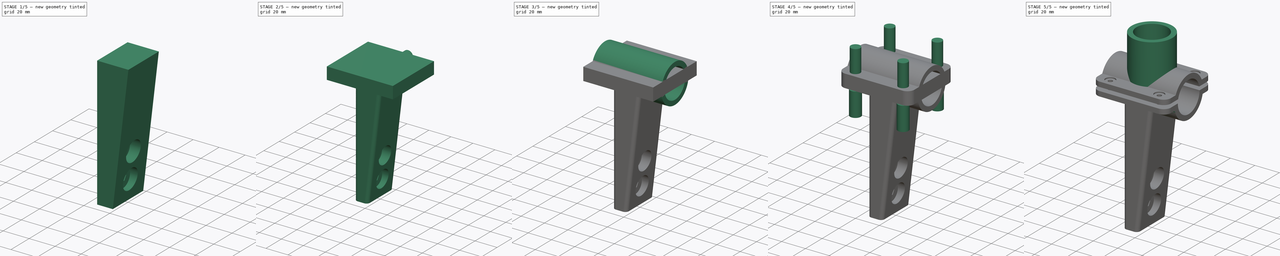
[diagram: build sequence overview — one tinted view per stage of 5, left to right]
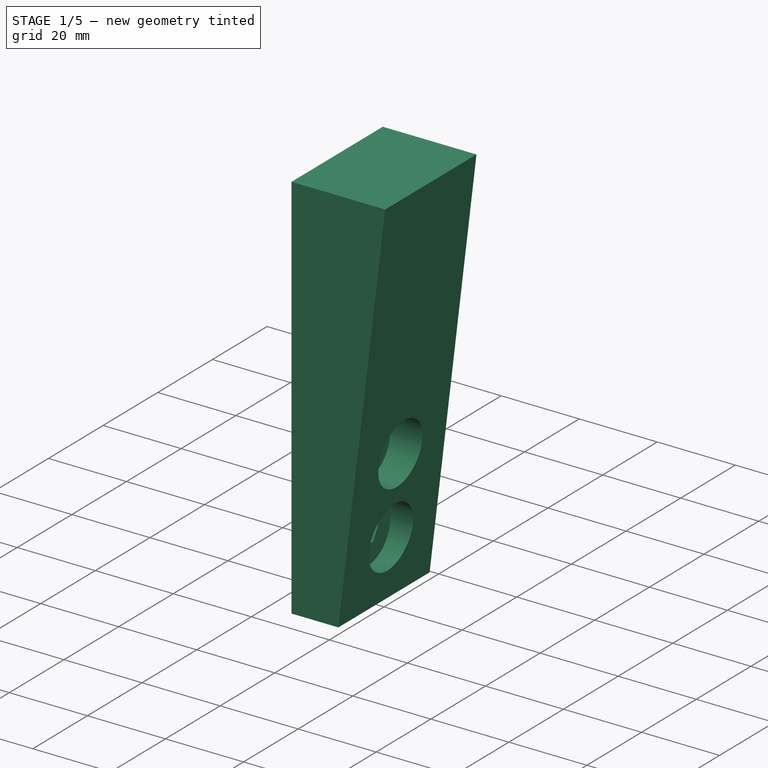
[diagram: stage 1 of 5 — iso view after this stage's code; geometry added in this stage tinted green]
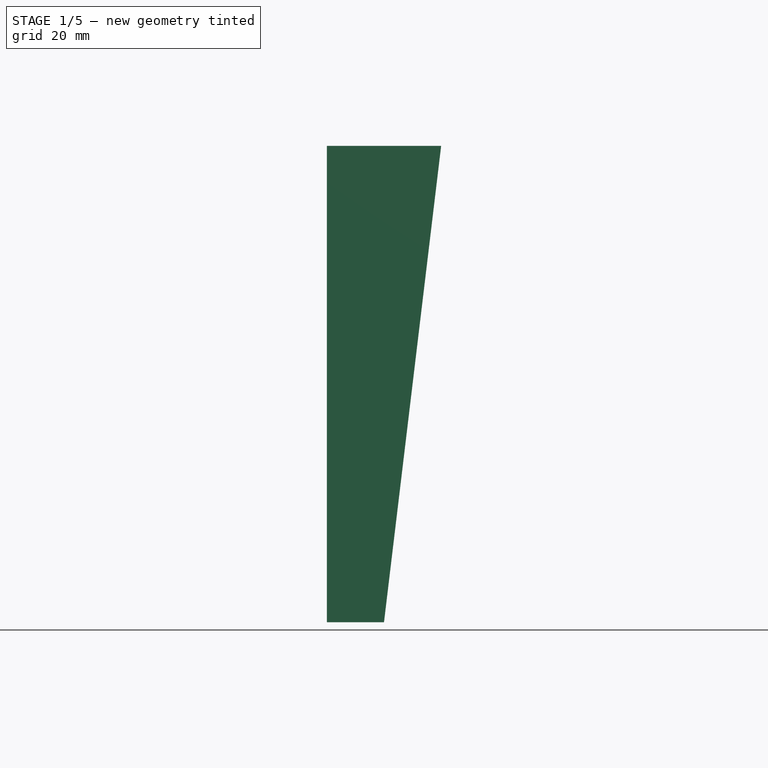
[diagram: stage 1 of 5 — front view after this stage's code; geometry added in this stage tinted green]
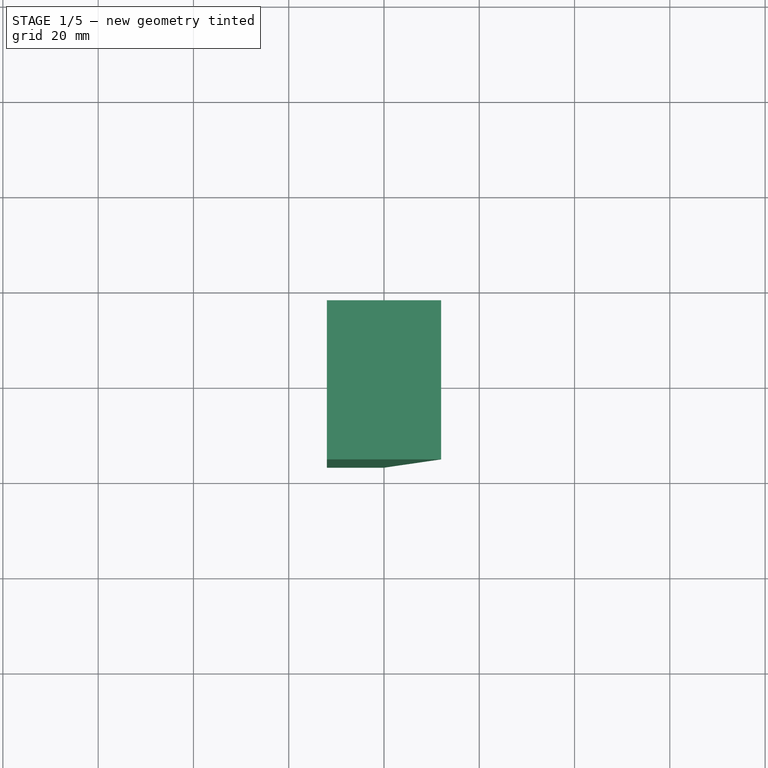
[diagram: stage 1 of 5 — top view after this stage's code; geometry added in this stage tinted green]
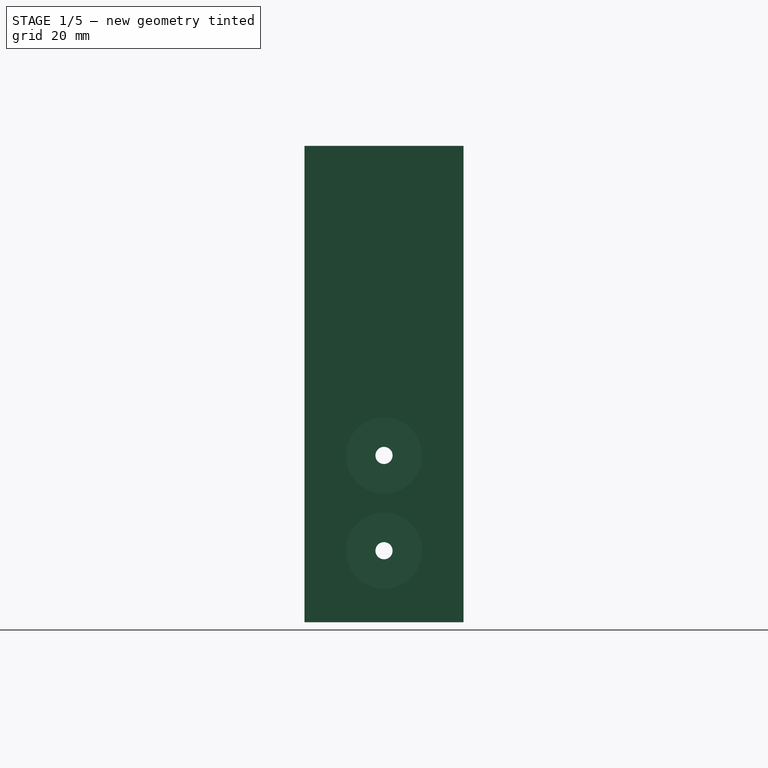
[diagram: stage 1 of 5 — right view after this stage's code; geometry added in this stage tinted green]
FCSTD DOCUMENT  (FreeCAD 0.18.4R)
Label: cross_connector
License: All rights reserved
LicenseURL: http://en.wikipedia.org/wiki/All_rights_reserved
objects: Part::Cylinder×14, Part::MultiFuse×7, PartDesign::FeatureBase×5, PartDesign::Body×5, Part::Box×4, Part::FeaturePython×3, Part::Fillet×3, Part::Cut×3, Spreadsheet::Sheet×2, App::Part×2, Sketcher::SketchObject×2, Part::Extrusion×1, PartDesign::AdditiveLoft×1
note: 49 computed .brp shape members not serialized (recipe doc carries the construction recipe); baked Part::Feature solids carry a one-line shape summary decoded from their .brp

FEATURE [Part::Extrusion] Extrude003  label="m3 nut hole"
  Dir = (0,0,1)
  DirMode = 2
  FaceMakerClass = Part::FaceMakerBullseye
  LengthFwd = 20
  LengthRev = 0
  Solid = true
  Symmetric = false
FEATURE [Sketcher::SketchObject] Sketch
  AttachmentOffset = pos=(0,0,60) rot=(0,0,1;0rad)
  MapMode = 5
  Placement = pos=(0,0,100) rot=(0,0,1;0rad)
  expr: Constraints[8] = 2 * (p001.pipe_internal_r + p001.outer_wall)
  sketch-geometry (4):
    g0: LineSegment StartX=-12 StartY=16.7 StartZ=0 EndX=12 EndY=16.7 EndZ=0
    g1: LineSegment StartX=12 StartY=16.7 StartZ=0 EndX=12 EndY=-16.7 EndZ=0
    g2: LineSegment StartX=12 StartY=-16.7 StartZ=0 EndX=-12 EndY=-16.7 EndZ=0
    g3: LineSegment StartX=-12 StartY=-16.7 StartZ=0 EndX=-12 EndY=16.7 EndZ=0
  constraints (10):
    c: Coincident(g0,g1)
    c: Coincident(g1,g2)
    c: Coincident(g2,g3)
    c: Coincident(g3,g0)
    c: Horizontal(g2)
    c: Vertical(g1)
    c: Symmetric(g0,g0,g-2)
    c: Symmetric(g0,g2,g-1)
    c: DistanceY(g1,g1) = 33.4
    c: DistanceX(g0,g0) = 24
FEATURE [Sketcher::SketchObject] Sketch001
  MapMode = 5
  expr: Constraints[7] = 2 * (p001.pipe_internal_r + p001.outer_wall)
  sketch-geometry (4):
    g0: LineSegment StartX=-12 StartY=16.7 StartZ=0 EndX=0 EndY=16.7 EndZ=0
    g1: LineSegment StartX=0 StartY=16.7 StartZ=0 EndX=0 EndY=-16.7 EndZ=0
    g2: LineSegment StartX=0 StartY=-16.7 StartZ=0 EndX=-12 EndY=-16.7 EndZ=0
    g3: LineSegment StartX=-12 StartY=-16.7 StartZ=0 EndX=-12 EndY=16.7 EndZ=0
  constraints (11):
    c: Coincident(g0,g1)
    c: Coincident(g1,g2)
    c: Coincident(g2,g3)
    c: Coincident(g3,g0)
    c: Horizontal(g0)
    c: Horizontal(g2)
    c: Vertical(g3)
    c: DistanceY(g3,g3) = 33.4
    c: DistanceX(g0,g0) = 12
    c: DistanceX(g2,g-1) = 12
    c: Symmetric(g1,g0,g-1)
FEATURE [PartDesign::AdditiveLoft] AdditiveLoft
  Closed = true
  Placement = pos=(0,0,100) rot=(0,0,1;0rad)
  Profile = -> Sketch
  Refine = true
  Ruled = true
  Sections = -> [Sketch001]
FEATURE [PartDesign::FeatureBase] Clone034
  BaseFeature = -> Extrude003
FEATURE [PartDesign::Body] Body036  label="m3 nut hole clone003"
  BaseFeature = -> Extrude003
  Group = -> [Clone034]
  Origin = -> Origin061
  Placement = pos=(0,32,0) rot=(1,0,0;1.5708rad)
  Tip = -> Clone034
FEATURE [Part::Cylinder] Cylinder096  label="m3 bolt hole003"
  Angle = 360
  AttacherType = Attacher::AttachEngine3D
  Height = 30
  Placement = pos=(0,0,0) rot=(-1,0,0;1.5708rad)
  Radius = 1.8
FEATURE [Part::Cylinder] Cylinder098  label="bolt head cylinder007"
  Angle = 360
  AttacherType = Attacher::AttachEngine3D
  Height = 20
  Placement = pos=(0,16,3.48e-14) rot=(-1,0,0;1.5708rad)
  Radius = 8
FEATURE [Part::MultiFuse] Fusion067  label="m3 bolt nut fusion005"
  Placement = pos=(-20,4e-15,15) rot=(0,0,-1;1.5708rad)
  Shapes = -> [Cylinder096,Body036,Cylinder098]
FEATURE [Part::FeaturePython] Array002  label="m3 bolt nut fusion005 array"  # Draft array (typed FeaturePython)
  Angle = 360
  ArrayType = 0
  Axis = (0,0,1)
  Base = -> Fusion067
  Center = (0,0,0)
  Fuse = false
  IntervalAxis = (0,0,0)
  IntervalX = (1,0,0)
  IntervalY = (0,1,0)
  IntervalZ = (0,0,20)
  NumberPolar = 1
  NumberX = 1
  NumberY = 1
  NumberZ = 2
FEATURE [Part::Cut] Cut002
  Base = -> AdditiveLoft
  Tool = -> Array002
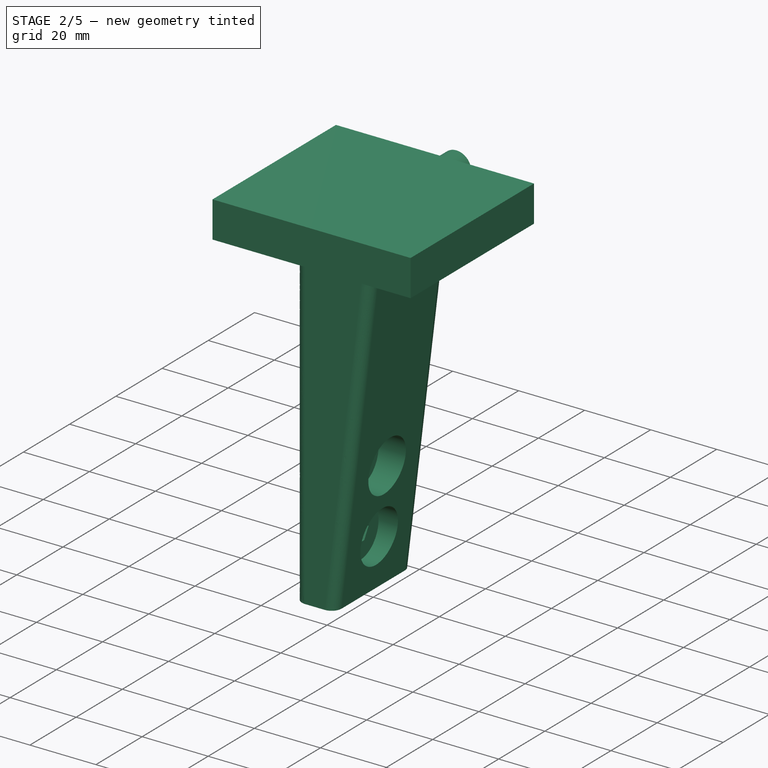
[diagram: stage 2 of 5 — iso view after this stage's code; geometry added in this stage tinted green]
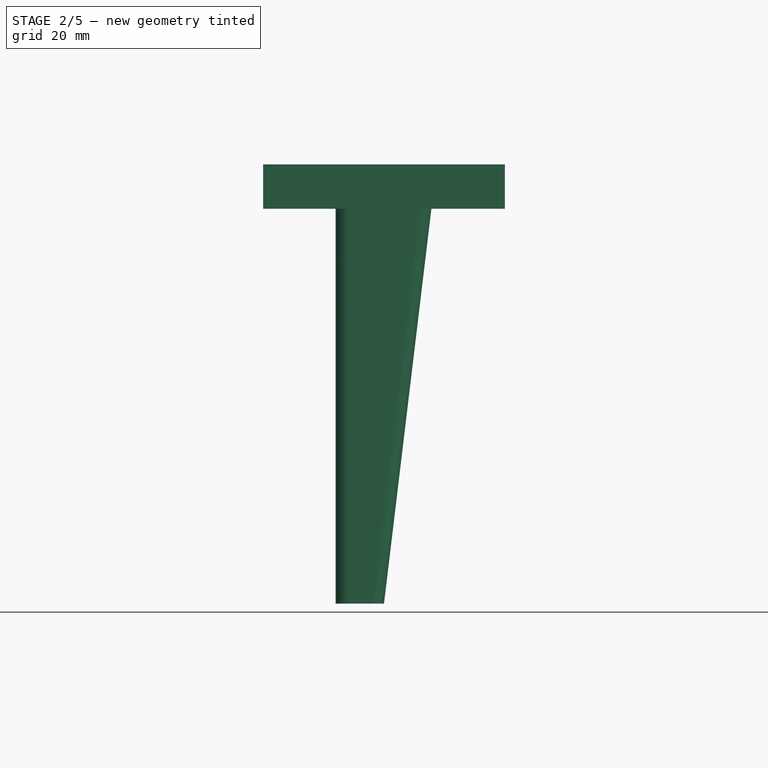
[diagram: stage 2 of 5 — front view after this stage's code; geometry added in this stage tinted green]
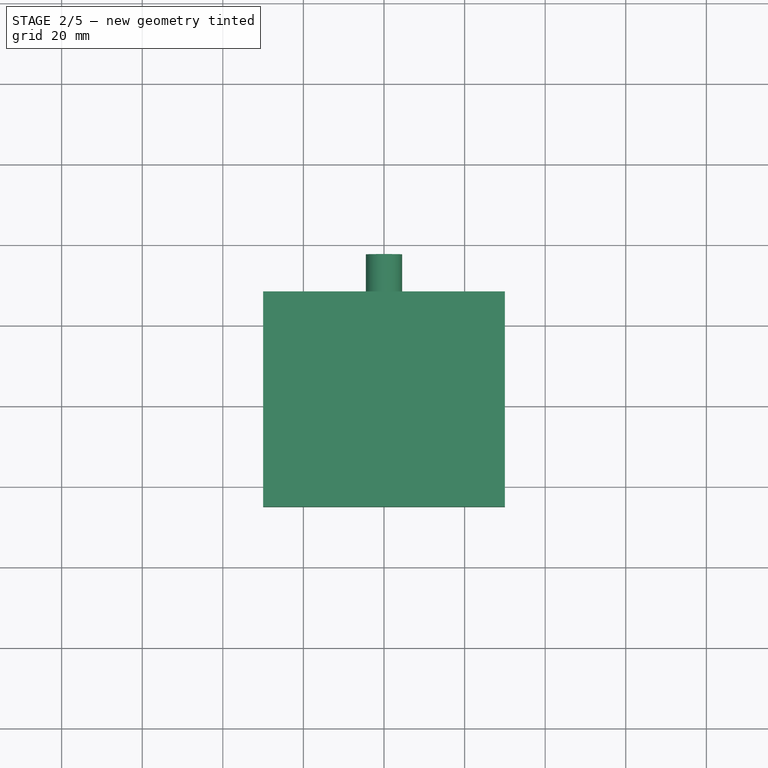
[diagram: stage 2 of 5 — top view after this stage's code; geometry added in this stage tinted green]
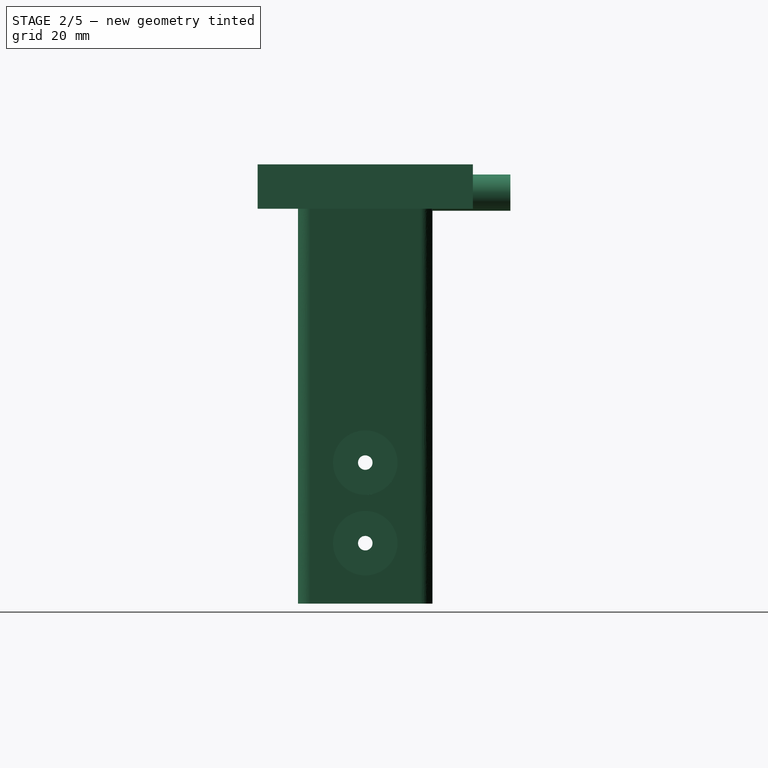
[diagram: stage 2 of 5 — right view after this stage's code; geometry added in this stage tinted green]
FEATURE [PartDesign::FeatureBase] Clone032
  BaseFeature = -> Extrude003
FEATURE [Part::Box] Box003  label="connect plate001"
  AttacherType = Attacher::AttachEngine3D
  Height = 11
  Length = 60
  Placement = pos=(-30,-26.7,-4) rot=(0,0,1;0rad)
  Width = 53.4
  expr: Width = 2 * (p.pipe_internal_r + 14)
  expr: Placement.Base.y = -(p.pipe_internal_r + 14)
  expr: Placement.Base.x = -p.horiz_sz / 2
  expr: Length = p.horiz_sz
  expr: Placement.Base.z = -p.outer_wall
  expr: Height = p.squeeze_flaw + 2 * p.outer_wall
FEATURE [Part::Cylinder] Cylinder093  label="m3 bolt hole002"
  Angle = 360
  AttacherType = Attacher::AttachEngine3D
  Height = 30
  Placement = pos=(0,0,0) rot=(-1,0,0;1.5708rad)
  Radius = 1.8
FEATURE [Part::Cylinder] Cylinder094  label="bolt head cylinder004"
  Angle = 360
  AttacherType = Attacher::AttachEngine3D
  Height = 20
  Placement = pos=(0,-16,3e-15) rot=(-1,0,0;1.5708rad)
  Radius = 4
FEATURE [Part::Cylinder] Cylinder095  label="bolt head cylinder005"
  Angle = 360
  AttacherType = Attacher::AttachEngine3D
  Height = 20
  Placement = pos=(0,16,3.48e-14) rot=(-1,0,0;1.5708rad)
  Radius = 4.5
FEATURE [Part::MultiFuse] Fusion064  label="m3 bolt nut fusion004"
  Shapes = -> [Cylinder093,Body033,Cylinder094,Cylinder095]
FEATURE [PartDesign::FeatureBase] Clone031
  BaseFeature = -> Fusion064
FEATURE [Part::Fillet] Fillet002  label="plate holder fillet"
  Base = -> Cut002
  Edges = 4 edges r=3: [Edge5,Edge7,Edge8,Edge12]
  Placement = pos=(0,0,-102) rot=(0,0,1;0rad)
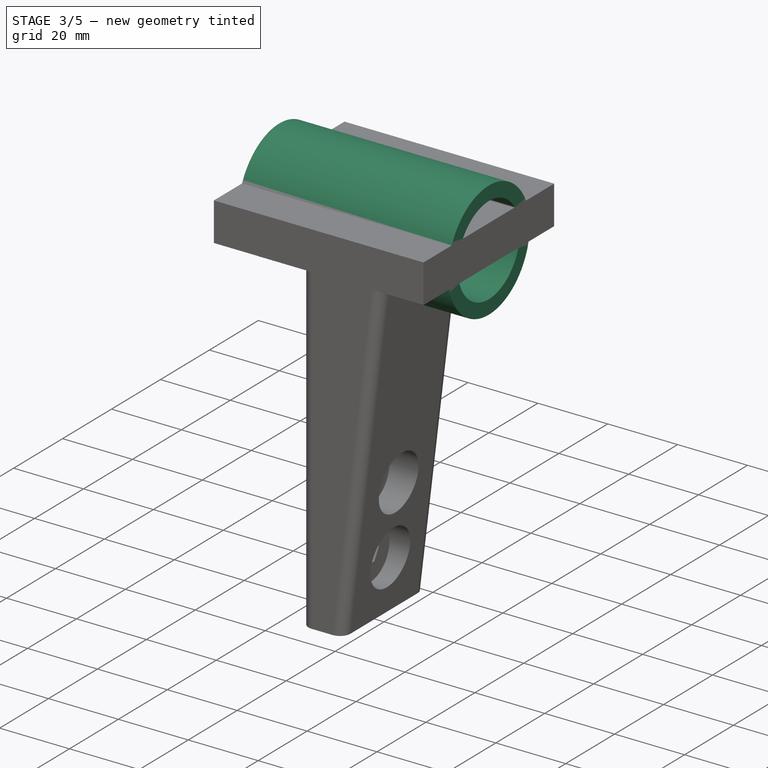
[diagram: stage 3 of 5 — iso view after this stage's code; geometry added in this stage tinted green]
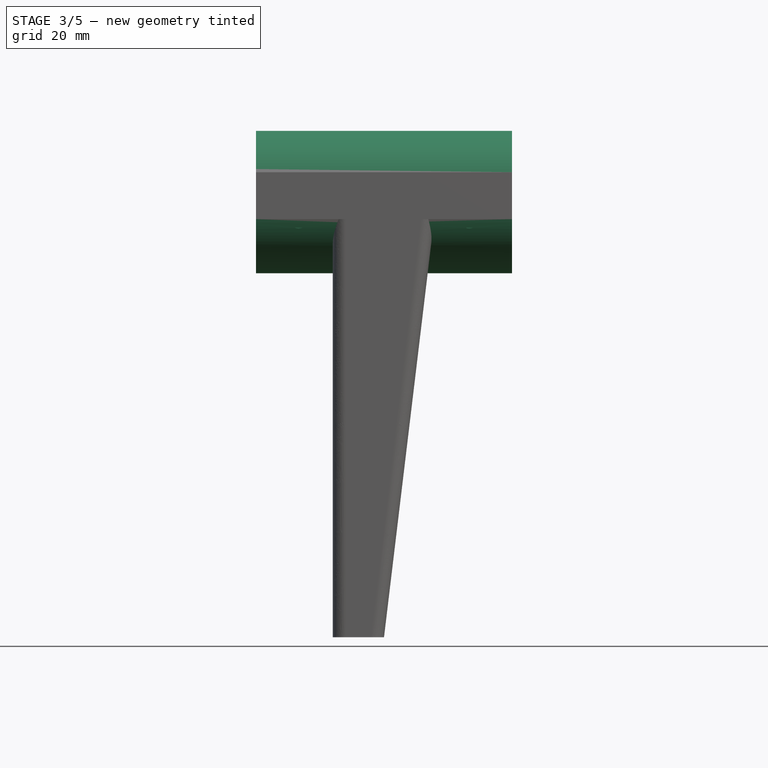
[diagram: stage 3 of 5 — front view after this stage's code; geometry added in this stage tinted green]
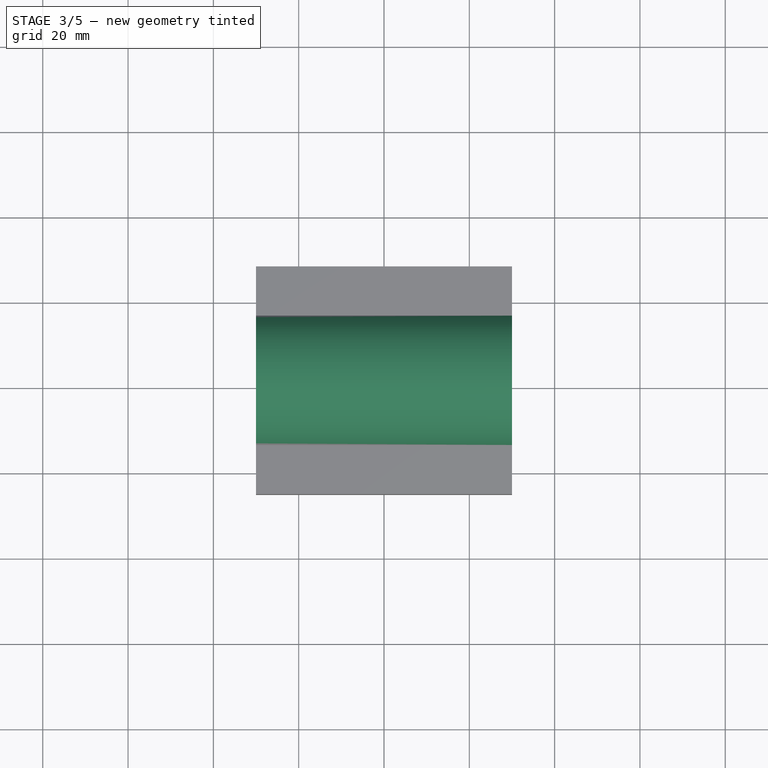
[diagram: stage 3 of 5 — top view after this stage's code; geometry added in this stage tinted green]
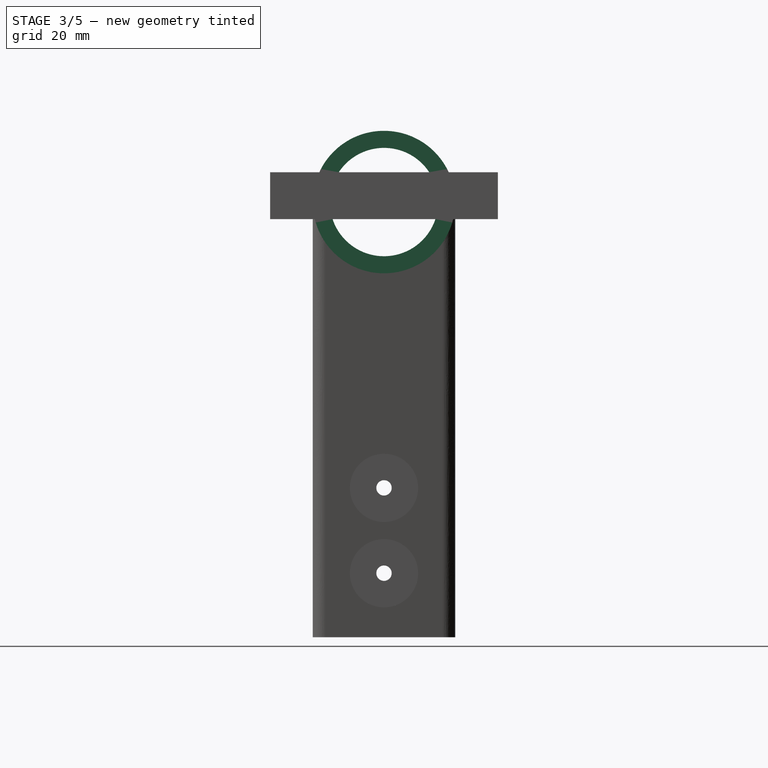
[diagram: stage 3 of 5 — right view after this stage's code; geometry added in this stage tinted green]
FEATURE [Part::Box] Box001  label="connect plate"
  AttacherType = Attacher::AttachEngine3D
  Height = 11
  Length = 60
  Placement = pos=(-30,-26.7,-4) rot=(0,0,1;0rad)
  Width = 53.4
  expr: Width = 2 * (p.pipe_internal_r + 14)
  expr: Placement.Base.y = -(p.pipe_internal_r + 14)
  expr: Placement.Base.x = -p.horiz_sz / 2
  expr: Length = p.horiz_sz
  expr: Placement.Base.z = -p.outer_wall
  expr: Height = p.squeeze_flaw + 2 * p.outer_wall
FEATURE [PartDesign::Body] Body033  label="m3 nut hole clone002"
  BaseFeature = -> Extrude003
  Group = -> [Clone032]
  Origin = -> Origin057
  Placement = pos=(0,32,0) rot=(1,0,0;1.5708rad)
  Tip = -> Clone032
FEATURE [Spreadsheet::Sheet] Spreadsheet001  label="p001"
  cells = A1=pipe_internal_r; B1(pipe_internal_r)=12.7; A2=outer_wall; B2(outer_wall)=4; A3=squeeze_flaw; B3(squeeze_flaw)=3; A4=horiz_sz; B4(horiz_sz)=60; A5=vert_sz; B5(vert_sz)=40
FEATURE [Part::Cylinder] Cylinder090  label="horiz hole001"
  Angle = 360
  AttacherType = Attacher::AttachEngine3D
  Height = 60
  Placement = pos=(-30,0,0) rot=(0.57735,0.57735,0.57735;2.0944rad)
  Radius = 12.7
  expr: Placement.Base.x = -p.horiz_sz / 2
  expr: Height = p.horiz_sz
  expr: Radius = p.pipe_internal_r
FEATURE [Part::Cylinder] Cylinder091  label="horiz cylinder001"
  Angle = 360
  AttacherType = Attacher::AttachEngine3D
  Height = 60
  Placement = pos=(-30,0,0) rot=(0.57735,0.57735,0.57735;2.0944rad)
  Radius = 16.7
  expr: Placement.Base.x = -p.horiz_sz / 2
  expr: Height = p.horiz_sz
  expr: Radius = p.pipe_internal_r + p.outer_wall
FEATURE [Part::Box] Box002  label="split plate001"
  AttacherType = Attacher::AttachEngine3D
  Height = 3
  Length = 120
  Placement = pos=(-60,-40,0) rot=(0,0,1;0rad)
  Width = 80
  expr: Placement.Base.x = -p.horiz_sz
  expr: Length = p.horiz_sz * 2
  expr: Height = p.squeeze_flaw
FEATURE [Part::Fillet] Fillet001  label="bolt hole plate fillet"
  Base = -> Box003
  Edges = 4 edges r=6: [Edge1,Edge3,Edge5,Edge7]
FEATURE [PartDesign::Body] Body034  label="m3 bolt fusion clone001"
  BaseFeature = -> Fusion064
  Group = -> [Clone031]
  Origin = -> Origin058
  Placement = pos=(-20,21,10) rot=(-1,0,0;1.5708rad)
  Tip = -> Clone031
FEATURE [Part::FeaturePython] Array001  label="m3 bolt nut fusion array001"  # Draft array (typed FeaturePython)
  Angle = 360
  ArrayType = 0
  Axis = (0,0,1)
  Base = -> Body034
  Center = (0,0,0)
  Fuse = false
  IntervalAxis = (0,0,0)
  IntervalX = (40,0,0)
  IntervalY = (0,-41,0)
  IntervalZ = (0,0,1)
  NumberPolar = 1
  NumberX = 2
  NumberY = 2
  NumberZ = 1
FEATURE [Part::MultiFuse] Fusion066  label="extraction fusion001"
  Shapes = -> [Cylinder090,Box002,Array001]
FEATURE [Part::MultiFuse] Fusion065  label="body fusion001"
  Shapes = -> [Cylinder091,Fillet001,Fillet002]
FEATURE [Part::Cut] Cut001  label="bottom plate cross holder cut"
  Base = -> Fusion065
  Tool = -> Fusion066
FEATURE [App::Part] Part  label="plate holder part"
  Group = -> [AdditiveLoft,Sketch001,Sketch,Array002,Extrude003,Cut002,Fusion067,Body036,Cylinder098,Cylinder096,Fillet002,Array001,Fillet001,Body034,Fusion065,Fusion066,Fusion064,Body033,Cylinder090,Cylinder091,Box002,Box003,Cylinder093,Cylinder094,Cylinder095,Cut001]
  Origin = -> Origin060
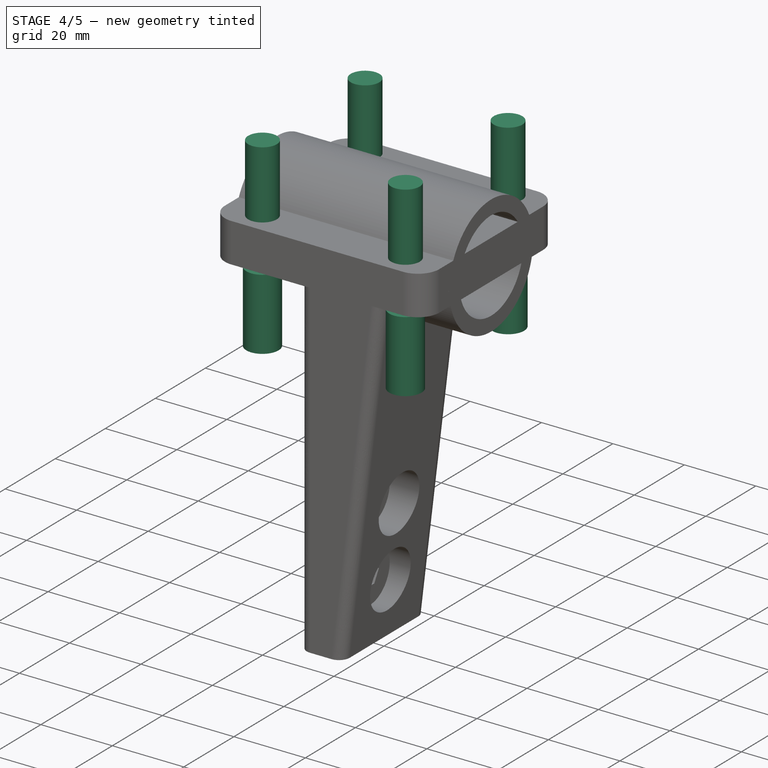
[diagram: stage 4 of 5 — iso view after this stage's code; geometry added in this stage tinted green]
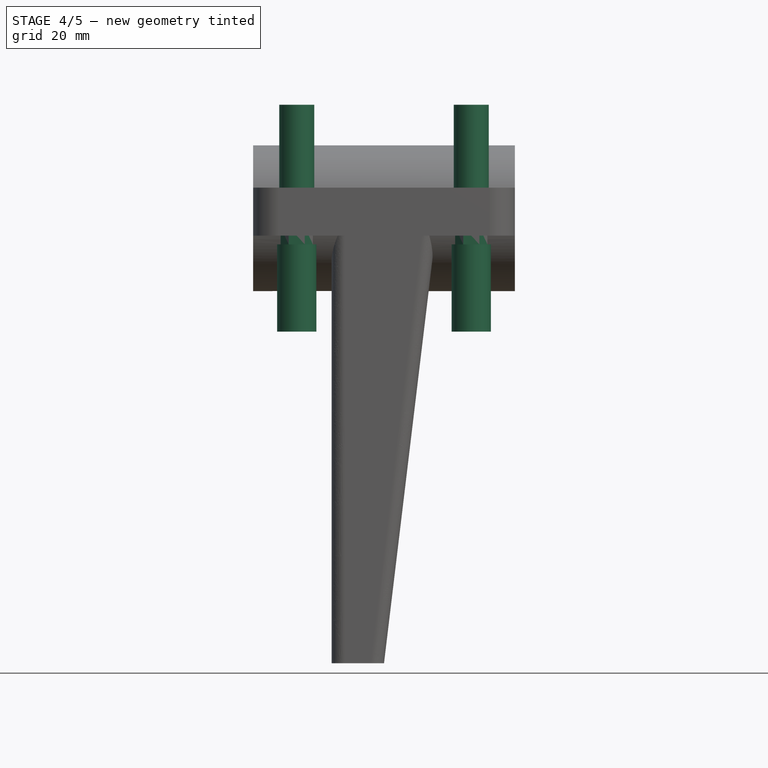
[diagram: stage 4 of 5 — front view after this stage's code; geometry added in this stage tinted green]
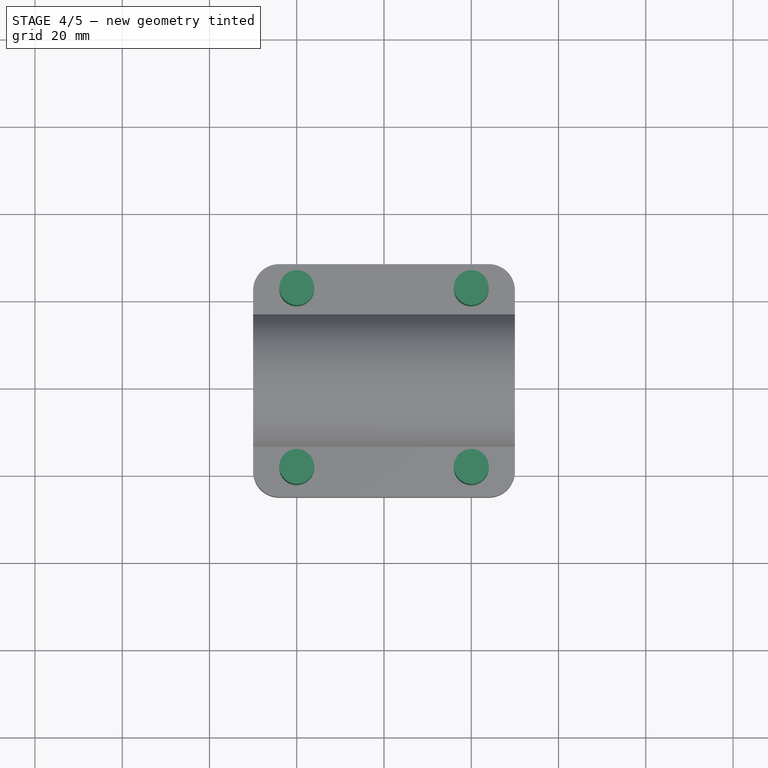
[diagram: stage 4 of 5 — top view after this stage's code; geometry added in this stage tinted green]
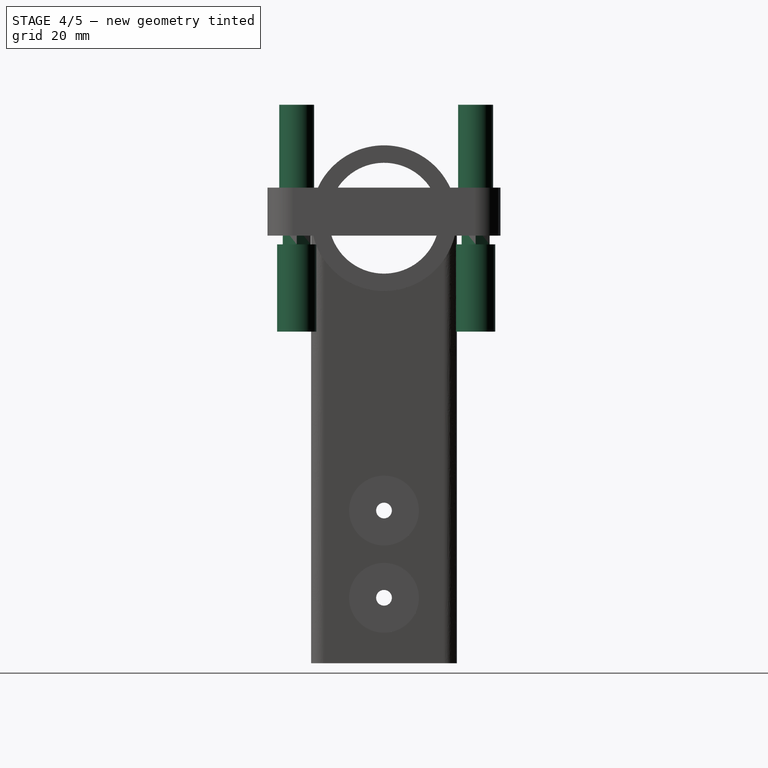
[diagram: stage 4 of 5 — right view after this stage's code; geometry added in this stage tinted green]
FEATURE [Part::Cylinder] Cylinder086  label="m3 bolt hole001"
  Angle = 360
  AttacherType = Attacher::AttachEngine3D
  Height = 30
  Placement = pos=(0,0,0) rot=(-1,0,0;1.5708rad)
  Radius = 1.8
FEATURE [PartDesign::FeatureBase] Clone030
  BaseFeature = -> Extrude003
FEATURE [PartDesign::Body] Body032  label="m3 nut hole clone001"
  BaseFeature = -> Extrude003
  Group = -> [Clone030]
  Origin = -> Origin054
  Placement = pos=(0,32,0) rot=(1,0,0;1.5708rad)
  Tip = -> Clone030
FEATURE [Part::Cylinder] Cylinder087  label="bolt head cylinder002"
  Angle = 360
  AttacherType = Attacher::AttachEngine3D
  Height = 20
  Placement = pos=(0,-16,3e-15) rot=(-1,0,0;1.5708rad)
  Radius = 4
FEATURE [Part::Cylinder] Cylinder088  label="bolt head cylinder003"
  Angle = 360
  AttacherType = Attacher::AttachEngine3D
  Height = 20
  Placement = pos=(0,16,3.48e-14) rot=(-1,0,0;1.5708rad)
  Radius = 4.5
FEATURE [Part::MultiFuse] Fusion063  label="m3 bolt nut fusion003"
  Shapes = -> [Cylinder086,Body032,Cylinder087,Cylinder088]
FEATURE [App::Part] Part003  label="m3 bold nut fusion part"
  Group = -> [Cylinder086,Body032,Cylinder087,Cylinder088,Fusion063]
  Origin = -> Origin056
  Placement = pos=(0,77,0) rot=(0,0,1;0rad)
FEATURE [PartDesign::FeatureBase] Clone
  BaseFeature = -> Fusion063
FEATURE [PartDesign::Body] Body  label="m3 bolt fusion clone"
  BaseFeature = -> Fusion063
  Group = -> [Clone]
  Origin = -> Origin
  Placement = pos=(-20,21,10) rot=(-1,0,0;1.5708rad)
  Tip = -> Clone
FEATURE [Part::FeaturePython] Array  label="m3 bolt nut fusion array"  # Draft array (typed FeaturePython)
  Angle = 360
  ArrayType = 0
  Axis = (0,0,1)
  Base = -> Body
  Center = (0,0,0)
  Fuse = false
  IntervalAxis = (0,0,0)
  IntervalX = (40,0,0)
  IntervalY = (0,-41,0)
  IntervalZ = (0,0,1)
  NumberPolar = 1
  NumberX = 2
  NumberY = 2
  NumberZ = 1
FEATURE [Part::Fillet] Fillet
  Base = -> Box001
  Edges = 4 edges r=6: [Edge1,Edge3,Edge5,Edge7]
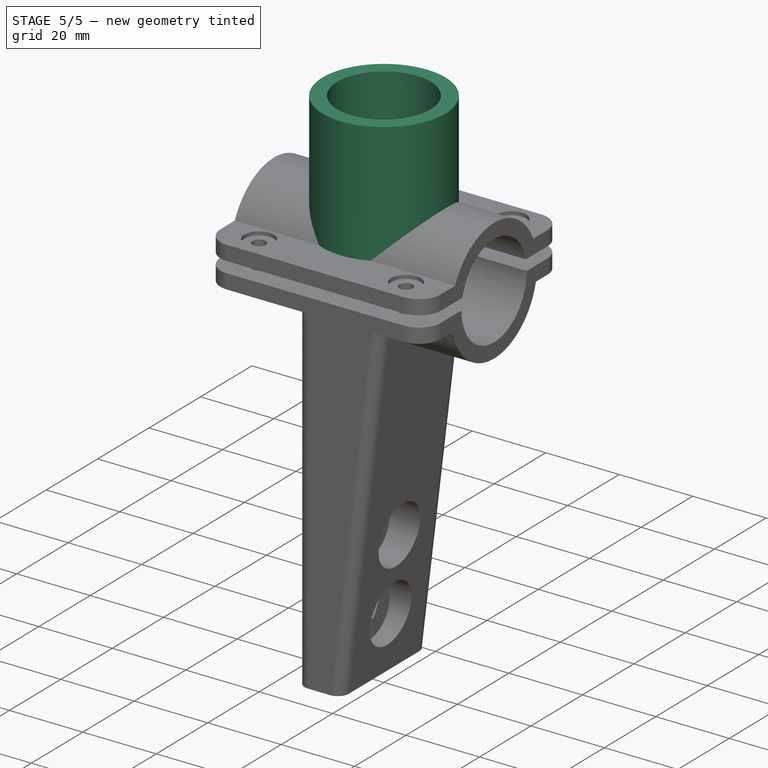
[diagram: stage 5 of 5 — iso view after this stage's code; geometry added in this stage tinted green]
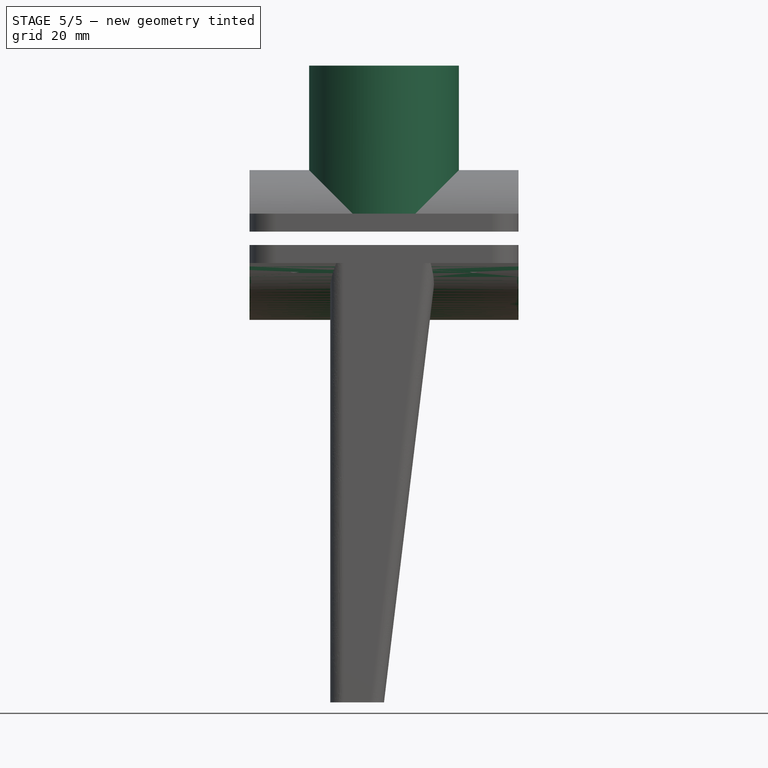
[diagram: stage 5 of 5 — front view after this stage's code; geometry added in this stage tinted green]
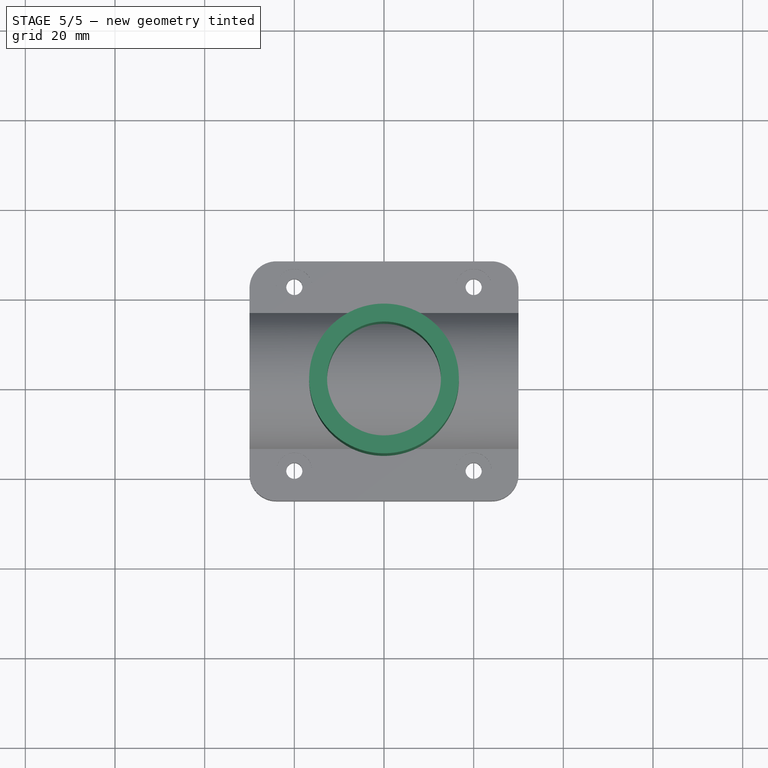
[diagram: stage 5 of 5 — top view after this stage's code; geometry added in this stage tinted green]
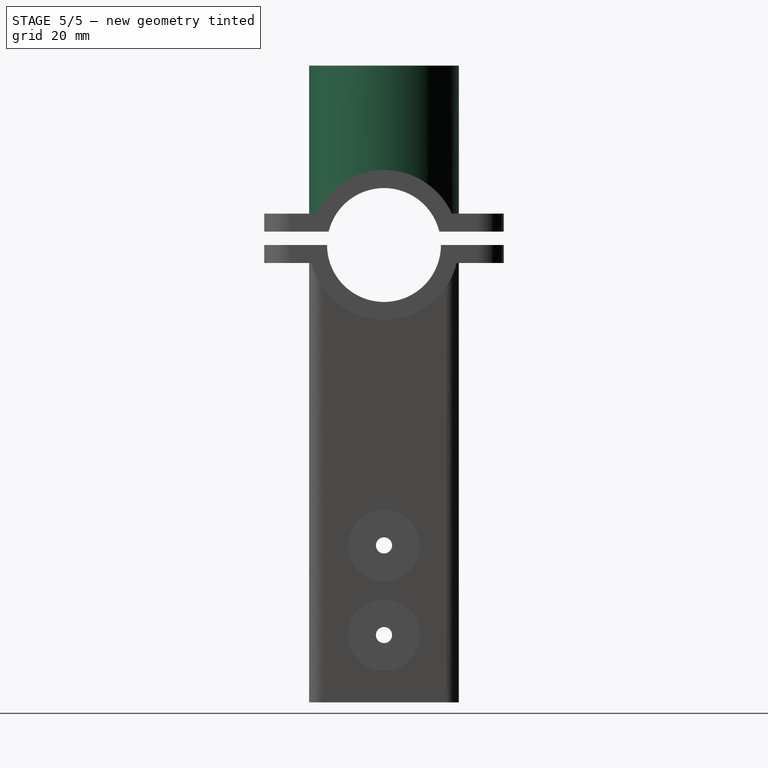
[diagram: stage 5 of 5 — right view after this stage's code; geometry added in this stage tinted green]
FEATURE [Part::Cylinder] Cylinder  label="vert hole"
  Angle = 360
  AttacherType = Attacher::AttachEngine3D
  Height = 40
  Radius = 12.7
  expr: Height = p.vert_sz
  expr: Radius = p.pipe_internal_r
FEATURE [Part::Cylinder] Cylinder001  label="horiz hole"
  Angle = 360
  AttacherType = Attacher::AttachEngine3D
  Height = 60
  Placement = pos=(-30,0,0) rot=(0.57735,0.57735,0.57735;2.0944rad)
  Radius = 12.7
  expr: Placement.Base.x = -p.horiz_sz / 2
  expr: Height = p.horiz_sz
  expr: Radius = p.pipe_internal_r
FEATURE [Spreadsheet::Sheet] Spreadsheet  label="p"
  cells = A1=pipe_internal_r; B1(pipe_internal_r)=12.7; A2=outer_wall; B2(outer_wall)=4; A3=squeeze_flaw; B3(squeeze_flaw)=3; A4=horiz_sz; B4(horiz_sz)=60; A5=vert_sz; B5(vert_sz)=40
FEATURE [Part::Cylinder] Cylinder004  label="horiz cylinder"
  Angle = 360
  AttacherType = Attacher::AttachEngine3D
  Height = 60
  Placement = pos=(-30,0,0) rot=(0.57735,0.57735,0.57735;2.0944rad)
  Radius = 16.7
  expr: Placement.Base.x = -p.horiz_sz / 2
  expr: Height = p.horiz_sz
  expr: Radius = p.pipe_internal_r + p.outer_wall
FEATURE [Part::Cylinder] Cylinder005  label="vert cylinder"
  Angle = 360
  AttacherType = Attacher::AttachEngine3D
  Height = 40
  Radius = 16.7
  expr: Height = p.vert_sz
  expr: Radius = p.pipe_internal_r + p.outer_wall
FEATURE [Part::Box] Box  label="split plate"
  AttacherType = Attacher::AttachEngine3D
  Height = 3
  Length = 120
  Placement = pos=(-60,-40,0) rot=(0,0,1;0rad)
  Width = 80
  expr: Placement.Base.x = -p.horiz_sz
  expr: Length = p.horiz_sz * 2
  expr: Height = p.squeeze_flaw
FEATURE [Part::MultiFuse] Fusion  label="extraction fusion"
  Shapes = -> [Cylinder,Cylinder001,Box,Array]
FEATURE [Part::MultiFuse] Fusion001  label="body fusion"
  Shapes = -> [Cylinder004,Cylinder005,Fillet]
FEATURE [Part::Cut] Cut  label="25mm pipe connector cut"
  Base = -> Fusion001
  Tool = -> Fusion
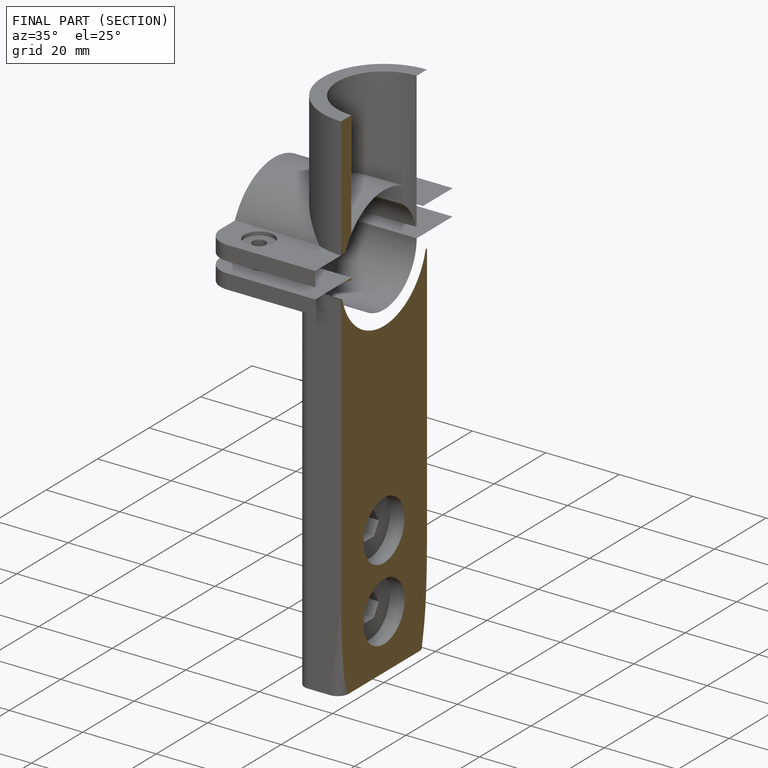
[diagram: finished part — half-section view (interior)]
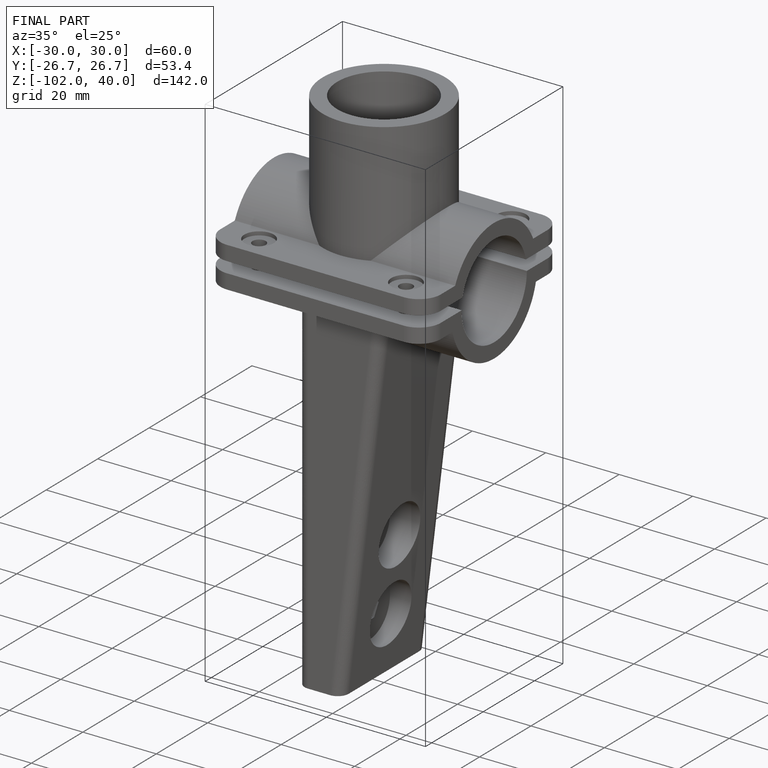
[diagram: finished part — iso view with bounding-box wireframe]
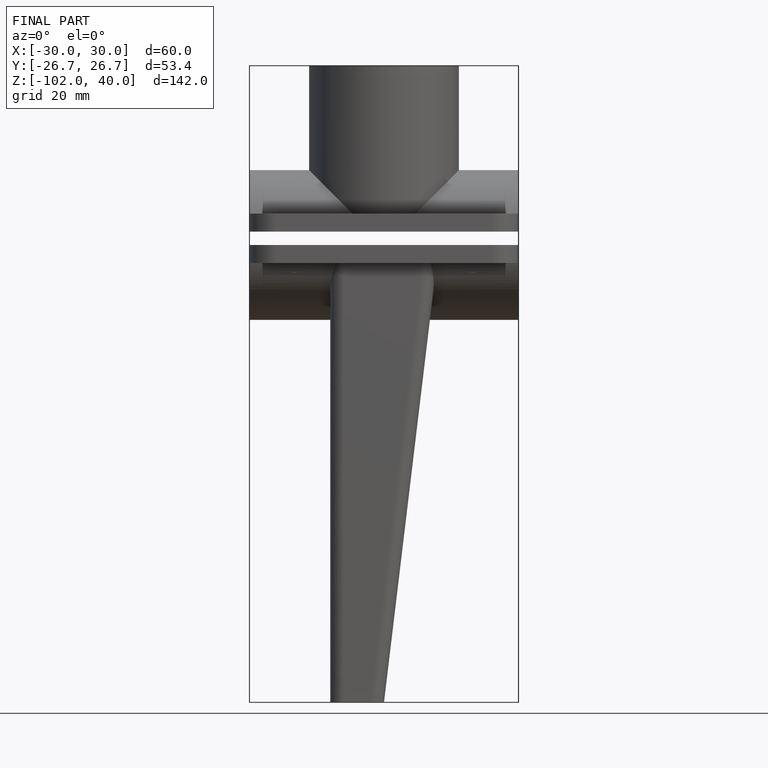
[diagram: finished part — front view with bounding-box wireframe]
